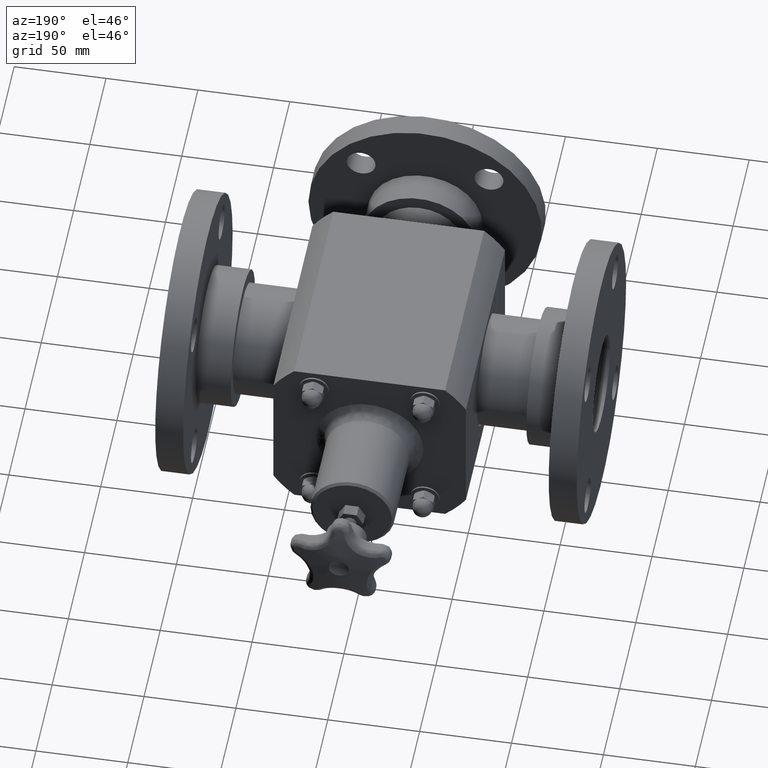
[diagram: clean part render]
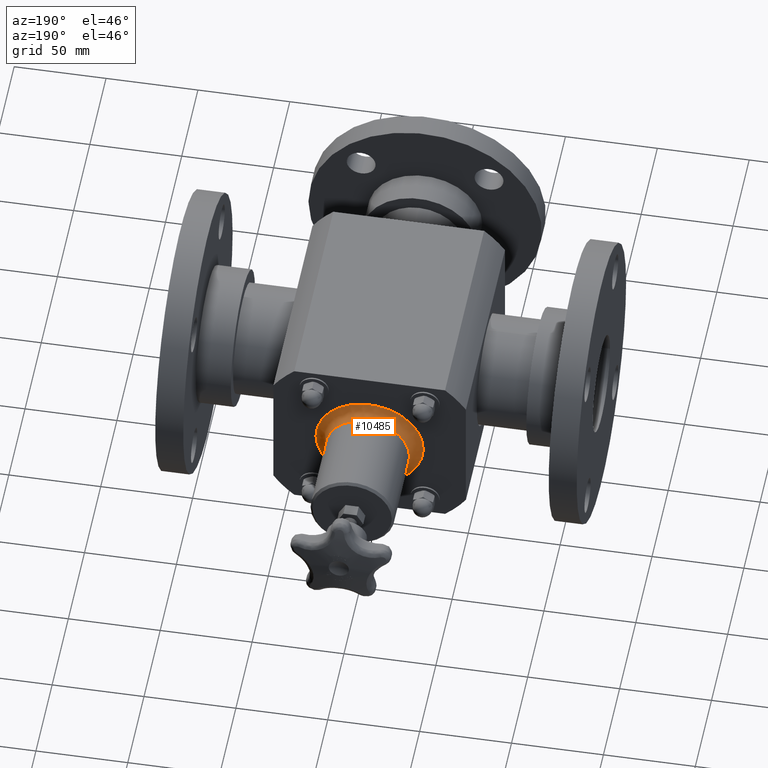
[diagram: same view with one face highlighted and labeled with its STEP entity id]
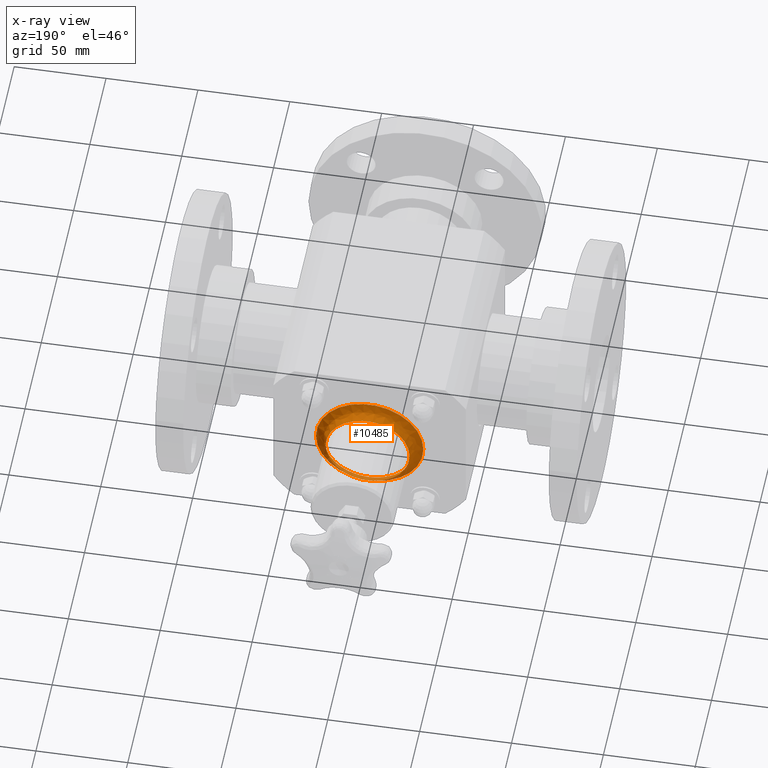
[diagram: x-ray of the same camera — body ghosted, the highlighted face saturated]
A machine part, auxiliary view. The second image highlights one B-rep face of the part: STEP entity #10485.
The next image is the same camera in x-ray: the body ghosted, the highlighted face saturated — about 10% of this face is hidden behind the body in this view.
In plain terms, the highlighted face is a freeform B-spline surface patch.
Its self-contained STEP definition (entity closure, byte-faithful):
#10403=CARTESIAN_POINT('',(0.899999999999995,5.000000000000002,-7.543054E-016));
#10404=VERTEX_POINT('',#10403);
#10405=CARTESIAN_POINT('',(-4.726503E-015,5.000000000000002,-4.370957E-016));
#10406=DIRECTION('',(0.0,-1.0,0.0));
#10407=DIRECTION('',(1.0,0.0,0.0));
#10408=AXIS2_PLACEMENT_3D('',#10405,#10406,#10407);
#10409=CIRCLE('',#10408,0.900000000000000);
#10410=EDGE_CURVE('',#10404,#10404,#10409,.T.);
#10418=CARTESIAN_POINT('',(-4.404516E-015,5.000000000000004,1.400000000000000));
#10419=CARTESIAN_POINT('',(-4.238206E-015,4.750000000000002,1.400000000000002));
#10420=CARTESIAN_POINT('',(-4.295703E-015,4.750000000000002,1.150000000000000));
#10421=CARTESIAN_POINT('',(-4.353201E-015,4.750000000000002,0.899999999999998));
#10422=CARTESIAN_POINT('',(-4.519511E-015,5.000000000000004,0.900000000000000));
#10423=CARTESIAN_POINT('',(-1.400000000000005,5.000000000000003,1.400000000000000));
#10424=CARTESIAN_POINT('',(-1.400000000000006,4.750000000000001,1.400000000000002));
#10425=CARTESIAN_POINT('',(-1.150000000000005,4.750000000000001,1.150000000000000));
#10426=CARTESIAN_POINT('',(-0.900000000000003,4.750000000000001,0.899999999999998));
#10427=CARTESIAN_POINT('',(-0.900000000000005,5.000000000000003,0.900000000000000));
#10428=CARTESIAN_POINT('',(-1.400000000000005,5.000000000000003,-1.151089E-016));
#10429=CARTESIAN_POINT('',(-1.400000000000007,4.750000000000001,-1.151089E-016));
#10430=CARTESIAN_POINT('',(-1.150000000000005,4.750000000000001,-1.726066E-016));
#10431=CARTESIAN_POINT('',(-0.900000000000003,4.750000000000001,-2.301042E-016));
#10432=CARTESIAN_POINT('',(-0.900000000000005,5.000000000000003,-2.301042E-016));
#10433=CARTESIAN_POINT('',(-1.400000000000005,5.000000000000003,-1.400000000000000));
#10434=CARTESIAN_POINT('',(-1.400000000000007,4.750000000000001,-1.400000000000002));
#10435=CARTESIAN_POINT('',(-1.150000000000005,4.750000000000001,-1.150000000000000));
#10436=CARTESIAN_POINT('',(-0.900000000000003,4.750000000000001,-0.899999999999999));
#10437=CARTESIAN_POINT('',(-0.900000000000005,5.000000000000003,-0.900000000000000));
#10438=CARTESIAN_POINT('',(-5.048490E-015,5.000000000000004,-1.400000000000001));
#10439=CARTESIAN_POINT('',(-4.882179E-015,4.750000000000002,-1.400000000000003));
#10440=CARTESIAN_POINT('',(-4.824681E-015,4.750000000000002,-1.150000000000001));
#10441=CARTESIAN_POINT('',(-4.767184E-015,4.750000000000002,-0.899999999999999));
#10442=CARTESIAN_POINT('',(-4.933494E-015,5.000000000000004,-0.900000000000001));
#10443=CARTESIAN_POINT('',(1.399999999999995,5.000000000000004,-1.400000000000001));
#10444=CARTESIAN_POINT('',(1.399999999999997,4.750000000000003,-1.400000000000003));
#10445=CARTESIAN_POINT('',(1.149999999999995,4.750000000000003,-1.150000000000001));
#10446=CARTESIAN_POINT('',(0.899999999999994,4.750000000000003,-0.899999999999999));
#10447=CARTESIAN_POINT('',(0.899999999999995,5.000000000000004,-0.900000000000001));
#10448=CARTESIAN_POINT('',(1.399999999999996,5.000000000000004,-7.590824E-016));
#10449=CARTESIAN_POINT('',(1.399999999999998,4.750000000000003,-7.590824E-016));
#10450=CARTESIAN_POINT('',(1.149999999999996,4.750000000000003,-7.015848E-016));
#10451=CARTESIAN_POINT('',(0.899999999999994,4.750000000000003,-6.440872E-016));
#10452=CARTESIAN_POINT('',(0.899999999999996,5.000000000000004,-6.440872E-016));
#10453=CARTESIAN_POINT('',(1.399999999999996,5.000000000000004,1.400000000000000));
#10454=CARTESIAN_POINT('',(1.399999999999998,4.750000000000003,1.400000000000001));
#10455=CARTESIAN_POINT('',(1.149999999999996,4.750000000000003,1.150000000000000));
#10456=CARTESIAN_POINT('',(0.899999999999994,4.750000000000003,0.899999999999998));
#10457=CARTESIAN_POINT('',(0.899999999999996,5.000000000000004,0.899999999999999));
#10458=CARTESIAN_POINT('',(-4.404516E-015,5.000000000000004,1.400000000000000));
#10459=CARTESIAN_POINT('',(-4.238206E-015,4.750000000000002,1.400000000000002));
#10460=CARTESIAN_POINT('',(-4.295703E-015,4.750000000000002,1.150000000000000));
#10461=CARTESIAN_POINT('',(-4.353201E-015,4.750000000000002,0.899999999999998));
#10462=CARTESIAN_POINT('',(-4.519511E-015,5.000000000000004,0.900000000000000));
#10470=(BOUNDED_SURFACE()B_SPLINE_SURFACE(2,2,((#10418,#10423,#10428,#10433,#10438,#10443,#10448,#10453,#10458),(#10419,#10424,#10429,#10434,#10439,#10444,#10449,#10454,#10459),(#10420,#10425,#10430,#10435,#10440,#10445,#10450,#10455,#10460),(#10421,#10426,#10431,#10436,#10441,#10446,#10451,#10456,#10461),(#10422,#10427,#10432,#10437,#10442,#10447,#10452,#10457,#10462)),.UNSPECIFIED.,.F.,.T.,.U.)B_SPLINE_SURFACE_WITH_KNOTS((3,2,3),(3,2,2,2,3),(-6.612826E-015,1.570796326794897,3.141592653589800),(0.0,1.570796326794897,3.141592653589793,4.712388980384690,6.283185307179586),.UNSPECIFIED.)GEOMETRIC_REPRESENTATION_ITEM()RATIONAL_B_SPLINE_SURFACE(((1.0,0.707106781186548,1.0,0.707106781186548,1.0,0.707106781186548,1.0,0.707106781186548,1.0),(0.707106781186547,0.500000000000000,0.707106781186547,0.500000000000000,0.707106781186547,0.500000000000000,0.707106781186547,0.500000000000000,0.707106781186547),(1.0,0.707106781186548,1.0,0.707106781186548,1.0,0.707106781186548,1.0,0.707106781186548,1.0),(0.707106781186550,0.500000000000001,0.707106781186550,0.500000000000001,0.707106781186550,0.500000000000001,0.707106781186550,0.500000000000001,0.707106781186550),(1.0,0.707106781186548,1.0,0.707106781186548,1.0,0.707106781186548,1.0,0.707106781186548,1.0)))REPRESENTATION_ITEM('')SURFACE());
#10471=CARTESIAN_POINT('',(1.149999999999996,4.750000000000003,-8.424192E-016));
#10472=VERTEX_POINT('',#10471);
#10473=CARTESIAN_POINT('',(-4.560192E-015,4.750000000000002,-4.370957E-016));
#10474=DIRECTION('',(0.0,-1.0,0.0));
#10475=DIRECTION('',(1.0,0.0,0.0));
#10476=AXIS2_PLACEMENT_3D('',#10473,#10474,#10475);
#10477=CIRCLE('',#10476,1.150000000000000);
#10478=EDGE_CURVE('',#10472,#10472,#10477,.T.);
#10479=ORIENTED_EDGE('',*,*,#10478,.F.);
#10480=EDGE_LOOP('',(#10479));
#10481=FACE_OUTER_BOUND('',#10480,.T.);
#10482=ORIENTED_EDGE('',*,*,#10410,.T.);
#10483=EDGE_LOOP('',(#10482));
#10484=FACE_BOUND('',#10483,.T.);
#10485=ADVANCED_FACE('',(#10481,#10484),#10470,.T.);